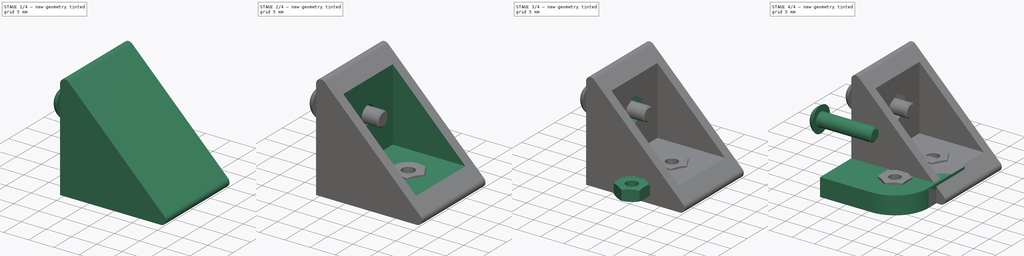
[diagram: build sequence overview — one tinted view per stage of 4, left to right]
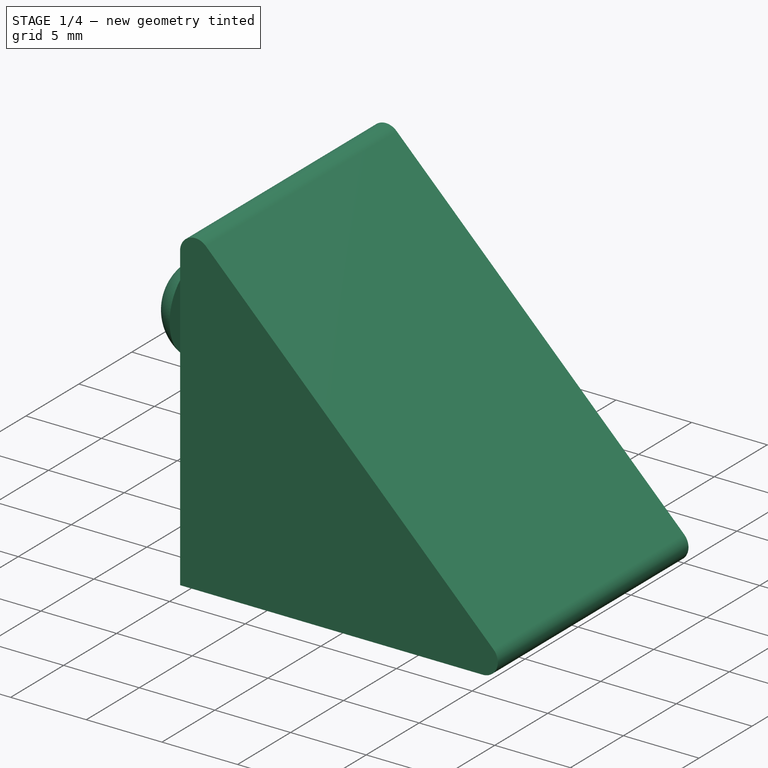
[diagram: stage 1 of 4 — iso view after this stage's code; geometry added in this stage tinted green]
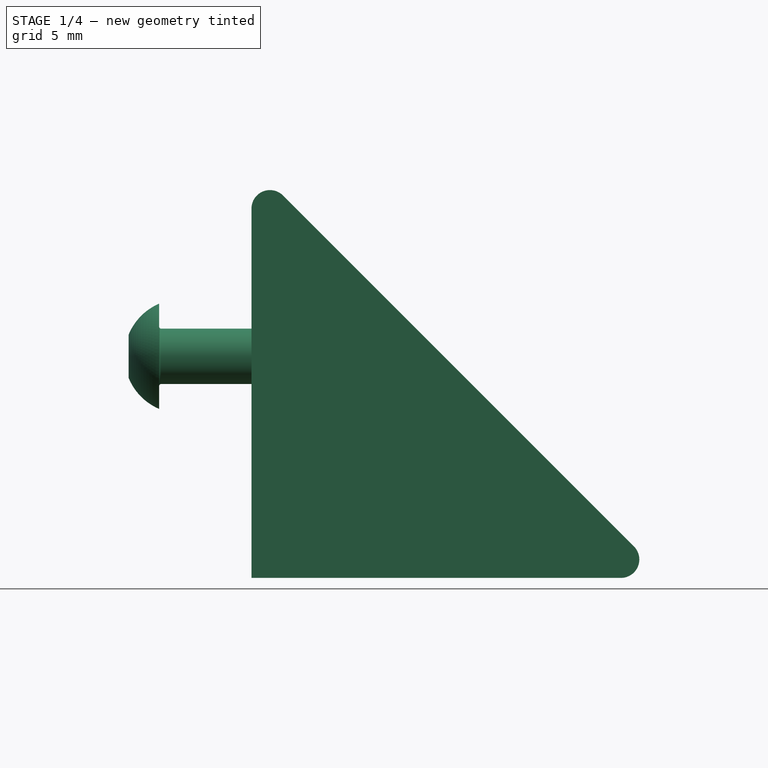
[diagram: stage 1 of 4 — front view after this stage's code; geometry added in this stage tinted green]
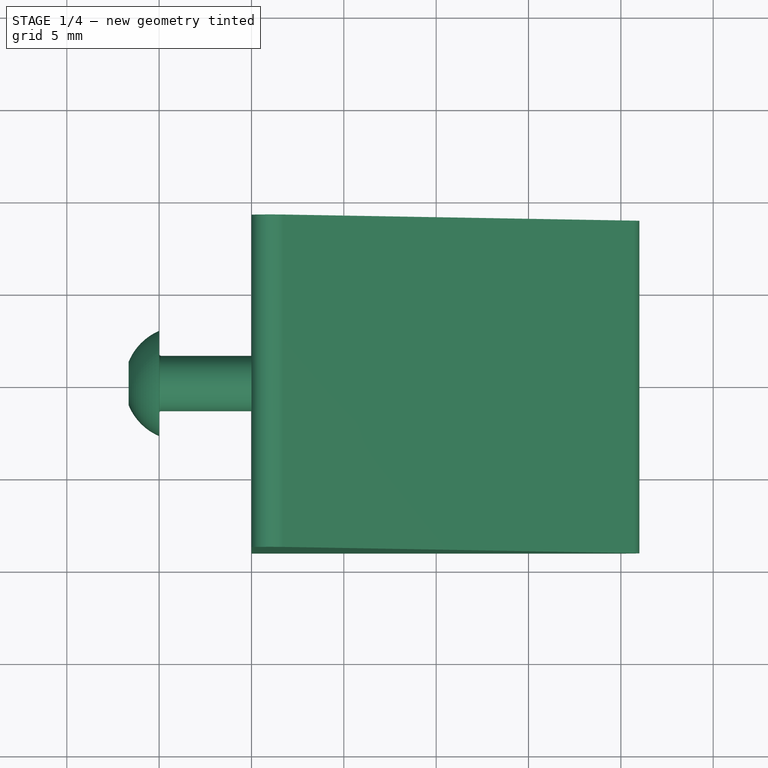
[diagram: stage 1 of 4 — top view after this stage's code; geometry added in this stage tinted green]
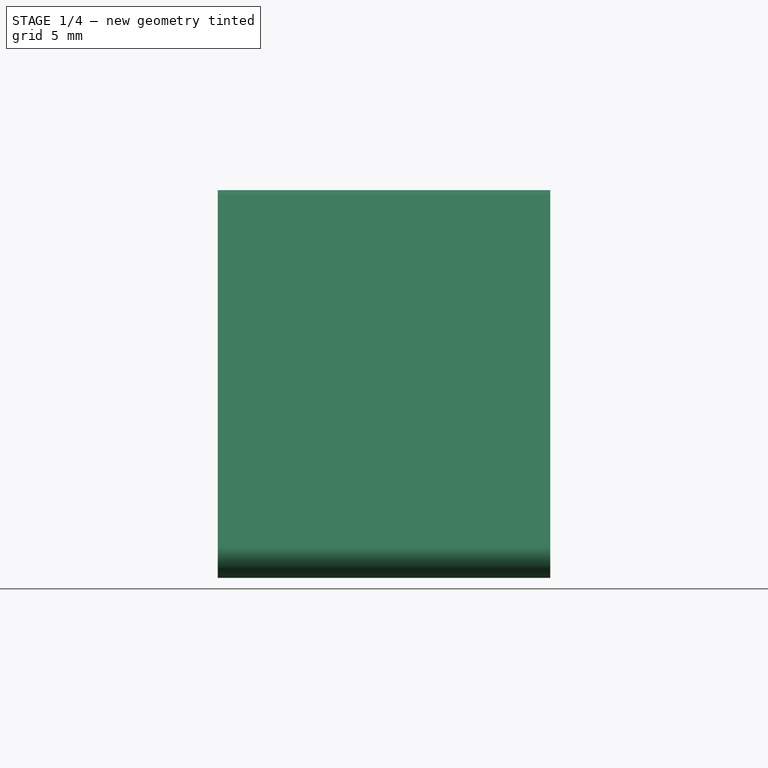
[diagram: stage 1 of 4 — right view after this stage's code; geometry added in this stage tinted green]
FCSTD DOCUMENT  (FreeCAD 0.20R29410 (Git))
Label: Bracket
License: All rights reserved
LicenseURL: http://en.wikipedia.org/wiki/All_rights_reserved
objects: Sketcher::SketchObject×8, App::LinkElement×6, PartDesign::Pocket×6, App::Part×6, App::Link×5, Part::FeaturePython×4, PartDesign::Pad×2, PartDesign::Body×2
note: 30 computed .brp shape members not serialized (recipe doc carries the construction recipe); baked Part::Feature solids carry a one-line shape summary decoded from their .brp

FEATURE [App::LinkElement] Link002_i0
  LinkPlacement = pos=(2,-11.5,11.5) rot=(0,1,0;1.5708rad)
  LinkedObject = -> Nut
  Placement = pos=(2,-11.5,11.5) rot=(0,1,0;1.5708rad)
  _LinkOwner = 3688
FEATURE [App::LinkElement] Link002_i1
  LinkPlacement = pos=(11.5,-2,11.5) rot=(1,0,0;1.5708rad)
  LinkedObject = -> Nut
  Placement = pos=(11.5,-2,11.5) rot=(1,0,0;1.5708rad)
  _LinkOwner = 3688
FEATURE [App::Link] Link002  label="M3-Nut001"
  ElementCount = 2
  ElementList = -> [Link002_i0,Link002_i1]
  LinkedObject = -> Nut
FEATURE [App::Part] Part001  label="bracket"
  Group = -> [Body,Link]
  Origin = -> Origin003
FEATURE [App::Part] Part002  label="screw"
  Group = -> [Screw,Link001,Nut,Link002]
  Origin = -> Origin004
FEATURE [App::Part] Part  label="Corner_bracket"
  Group = -> [Part001,Part002]
  Origin = -> Origin002
FEATURE [Sketcher::SketchObject] Sketch002
  FullyConstrained = true
  MapMode = 5
  Placement = pos=(0,0,0) rot=(1,0,0;1.5708rad)
  Support = -> [XZ_Plane008]
  sketch-geometry (5):
    g0: LineSegment StartX=0 StartY=20 StartZ=0 EndX=0 EndY=0 EndZ=0
    g1: LineSegment StartX=0 StartY=0 StartZ=0 EndX=20 EndY=0 EndZ=0
    g2: ArcOfCircle CenterX=1 CenterY=20 CenterZ=0 NormalX=0 NormalY=0 NormalZ=1 AngleXU=0 Radius=1 StartAngle=0.785398 EndAngle=3.14159
    g3: ArcOfCircle CenterX=20 CenterY=1 CenterZ=0 NormalX=0 NormalY=0 NormalZ=1 AngleXU=0 Radius=1 StartAngle=4.71239 EndAngle=7.06858
    g4: LineSegment StartX=1.70711 StartY=20.7071 StartZ=0 EndX=20.7071 EndY=1.70711 EndZ=0
  constraints (13):
    c: PointOnObject(g0,g-2)
    c: Vertical(g0)
    c: Coincident(g1,g0)
    c: PointOnObject(g1,g-1)
    c: Horizontal(g1)
    c: Tangent(g3,g1) = -1.5708
    c: Tangent(g2,g0) = -1.5708
    c: Tangent(g4,g3) = 1.5708
    c: Tangent(g4,g2) = 1.5708
    c: Angle(g4,g1) = 0.785398
    c: Equal(g3,g2)
    c: Diameter(g3) = 2
    c: DistanceY(g0,g0) = 20
FEATURE [PartDesign::Pad] Pad001
  Direction = (0,-1,2e-16)
  Length = 18
  Length2 = 10
  Midplane = true
  Placement = pos=(0,0,0) rot=(1,0,0;1.5708rad)
  Profile = -> Sketch002
  ReferenceAxis = -> Sketch002 [N_Axis]
  Type = 0
FEATURE [PartDesign::Body] Body001  label="Body002"
  Group = -> [Sketch002,Pad001,Sketch003,Pocket001,Sketch004,Pocket002,Sketch005,Pocket003,Sketch006,Pocket004,Sketch007,Pocket005]
  Origin = -> Origin008
  Tip = -> Pocket005
FEATURE [App::Part] Part004  label="bracket001"
  Group = -> [Body001]
  Origin = -> Origin006
FEATURE [Part::FeaturePython] Nut001  label="M3-Nut004"  # Fasteners workbench fastener (typed FeaturePython)
  Placement = pos=(12,0,2) rot=(0,0,1;0rad)
  diameter = 4
  invert = false
  leftHanded = false
  matchOuter = false
  offset = 0
  thread = false
  type = 10
FEATURE [App::Link] Link003  label="M3-Nut003"
  LinkPlacement = pos=(2,0,12) rot=(0,1,0;1.5708rad)
  LinkedObject = -> Nut001
  Placement = pos=(2,0,12) rot=(0,1,0;1.5708rad)
FEATURE [Part::FeaturePython] Screw001  label="M3x12-Screw001"  # Fasteners workbench fastener (typed FeaturePython)
  Placement = pos=(-5,0,12) rot=(0,1,0;4.71239rad)
  diameter = 1
  invert = false
  leftHanded = false
  length = 3
  lengthCustom = 12
  matchOuter = false
  offset = 0
  thread = false
  type = 48
FEATURE [App::Link] Link004  label="M3x10-Screw002"
  LinkPlacement = pos=(12,-1.14441e-05,-5) rot=(0,1,0;3.14159rad)
  LinkedObject = -> Screw001
  Placement = pos=(12,-1.14441e-05,-5) rot=(0,1,0;3.14159rad)
FEATURE [App::Part] Part005  label="screw001"
  Group = -> [Nut001,Link003,Screw001,Link004]
  Origin = -> Origin007
FEATURE [App::Part] Part003  label="Right_angle_bracket"
  Group = -> [Part004,Part005]
  Origin = -> Origin005
  Placement = pos=(0,-42,0) rot=(0,0,1;0rad)
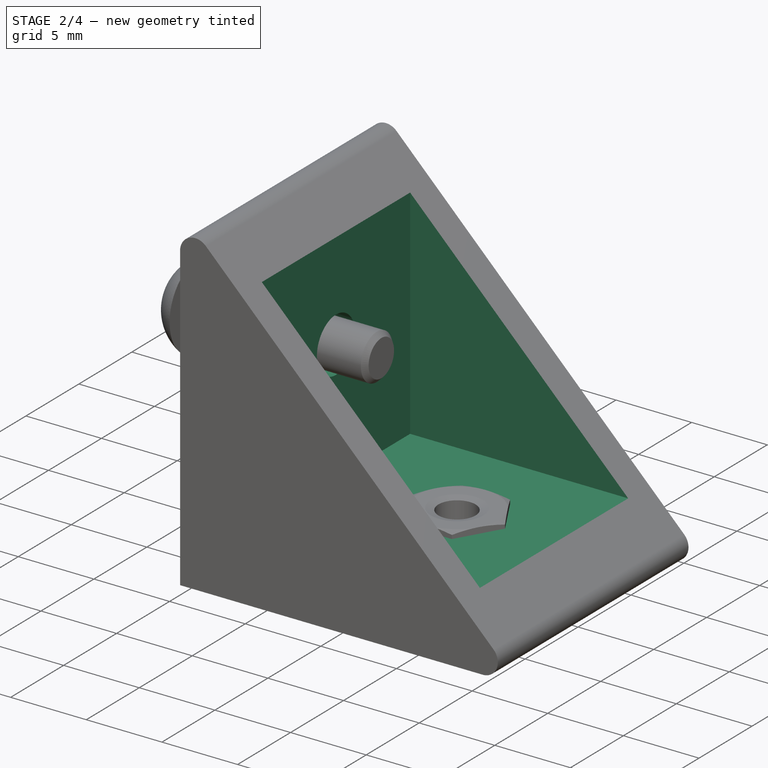
[diagram: stage 2 of 4 — iso view after this stage's code; geometry added in this stage tinted green]
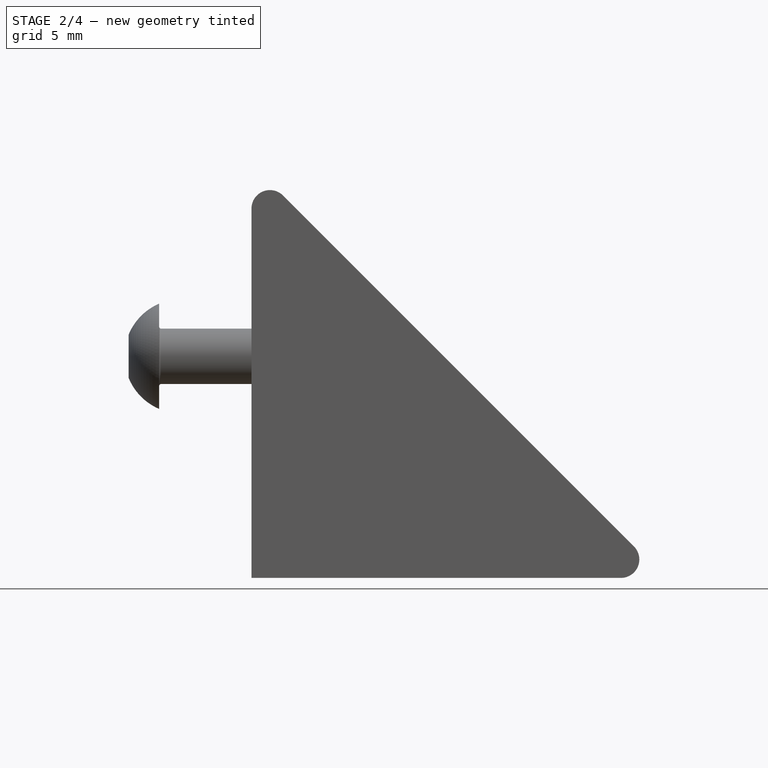
[diagram: stage 2 of 4 — front view after this stage's code; geometry added in this stage tinted green]
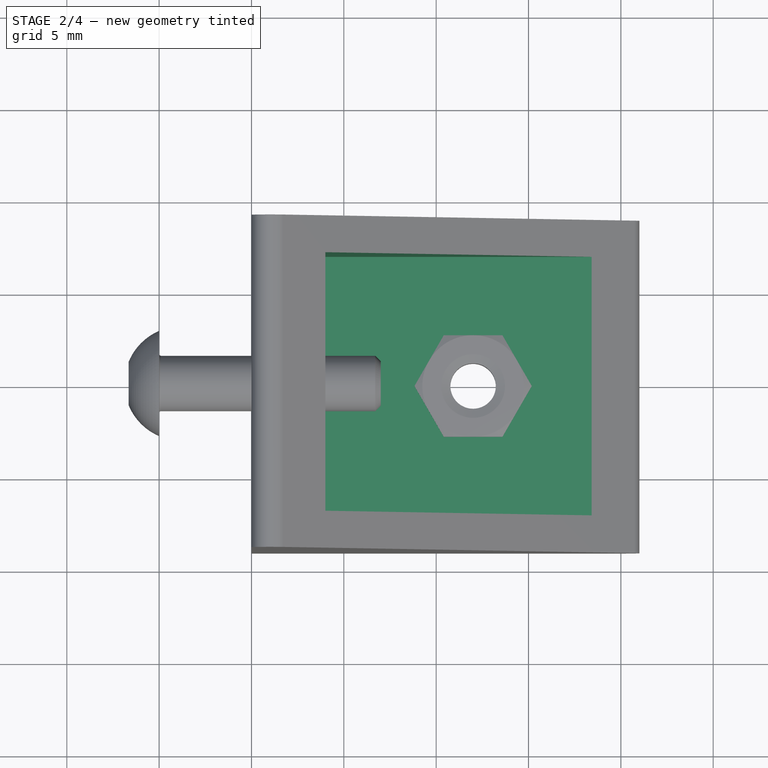
[diagram: stage 2 of 4 — top view after this stage's code; geometry added in this stage tinted green]
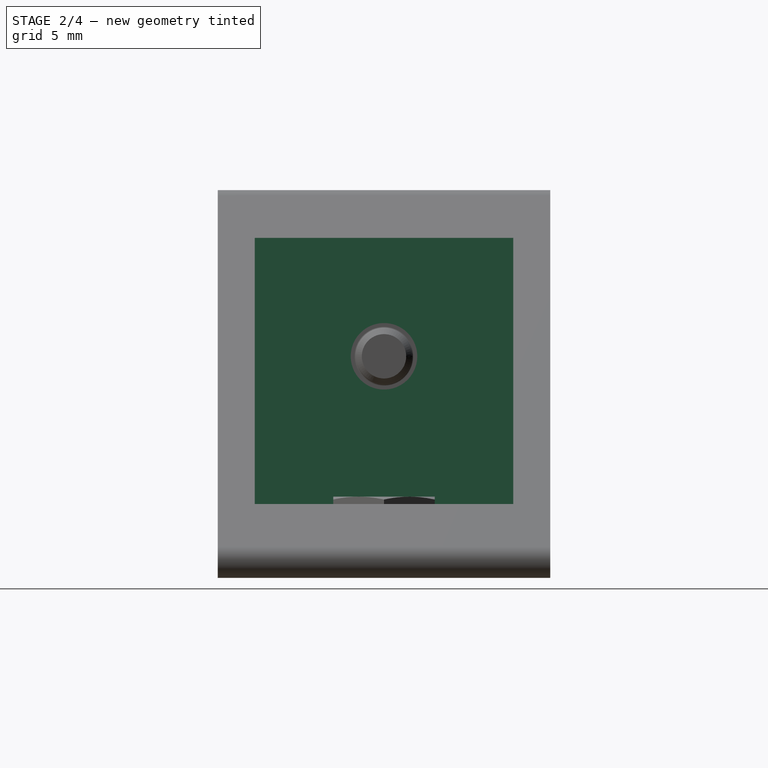
[diagram: stage 2 of 4 — right view after this stage's code; geometry added in this stage tinted green]
FEATURE [Sketcher::SketchObject] Sketch003
  FullyConstrained = true
  MapMode = 5
  Placement = pos=(0,0,0) rot=(1,0,0;1.5708rad)
  Support = -> [XZ_Plane008]
  sketch-geometry (3):
    g0: LineSegment StartX=4 StartY=24 StartZ=0 EndX=4 EndY=4 EndZ=0
    g1: LineSegment StartX=4 StartY=4 StartZ=0 EndX=24 EndY=4 EndZ=0
    g2: LineSegment StartX=24 StartY=4 StartZ=0 EndX=4 EndY=24 EndZ=0
  constraints (9):
    c: Vertical(g0)
    c: Coincident(g1,g0)
    c: Horizontal(g1)
    c: Coincident(g2,g1)
    c: Coincident(g2,g0)
    c: Angle(g2,g1) = 0.785398
    c: DistanceX(g-1,g0) = 4
    c: DistanceY(g-1,g0) = 4
    c: DistanceY(g0,g0) = 20
FEATURE [PartDesign::Pocket] Pocket001
  BaseFeature = -> Pad001
  Direction = (0,1,-2e-16)
  Length = 14
  Length2 = 5
  Midplane = true
  Placement = pos=(0,0,0) rot=(1,0,0;1.5708rad)
  Profile = -> Sketch003
  ReferenceAxis = -> Sketch003 [N_Axis]
  Type = 0
FEATURE [Sketcher::SketchObject] Sketch004
  FullyConstrained = true
  MapMode = 5
  Support = -> [XY_Plane008]
  sketch-geometry (1):
    g0: Circle CenterX=12 CenterY=0 CenterZ=0 NormalX=0 NormalY=0 NormalZ=1 AngleXU=0 Radius=1.8
  constraints (3):
    c: PointOnObject(g0,g-1)
    c: Diameter(g0) = 3.6
    c: DistanceX(g-1,g0) = 12
FEATURE [PartDesign::Pocket] Pocket002
  BaseFeature = -> Pocket001
  Direction = (0,0,-1)
  Length = 5
  Length2 = 5
  Midplane = true
  Placement = pos=(0,0,0) rot=(1,0,0;1.5708rad)
  Profile = -> Sketch004
  ReferenceAxis = -> Sketch004 [N_Axis]
  Type = 1
FEATURE [Sketcher::SketchObject] Sketch005
  FullyConstrained = true
  MapMode = 5
  Placement = pos=(0,0,0) rot=(0.57735,0.57735,0.57735;2.0944rad)
  Support = -> [YZ_Plane008]
  sketch-geometry (1):
    g0: Circle CenterX=0 CenterY=12 CenterZ=0 NormalX=0 NormalY=0 NormalZ=1 AngleXU=0 Radius=1.8
  constraints (3):
    c: PointOnObject(g0,g-2)
    c: Diameter(g0) = 3.6
    c: DistanceY(g-1,g0) = 12
FEATURE [PartDesign::Pocket] Pocket003
  BaseFeature = -> Pocket002
  Direction = (-1,2e-16,-3e-16)
  Length = 5
  Length2 = 5
  Midplane = true
  Placement = pos=(0,0,0) rot=(1,0,0;1.5708rad)
  Profile = -> Sketch005
  ReferenceAxis = -> Sketch005 [N_Axis]
  Type = 1
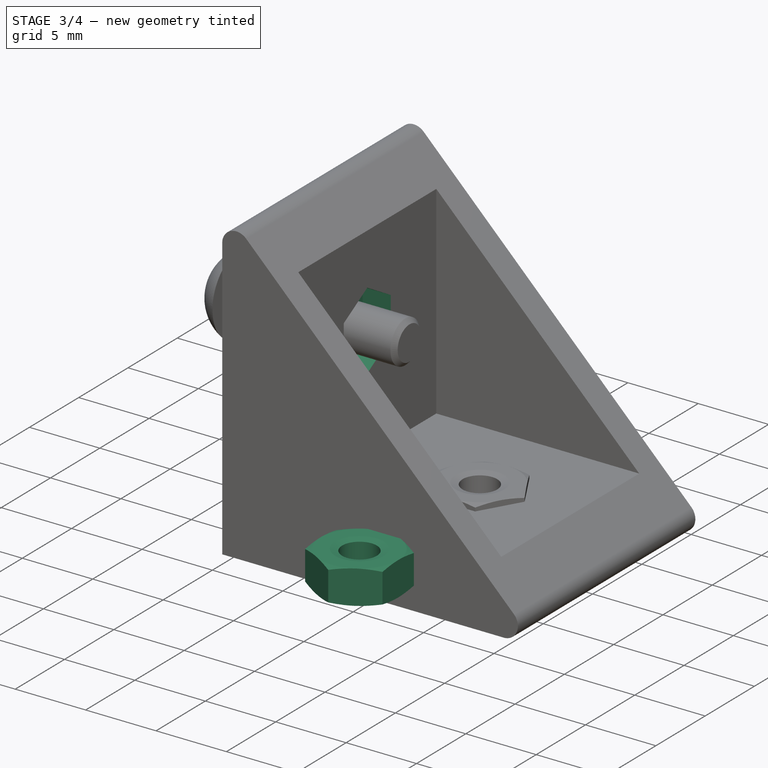
[diagram: stage 3 of 4 — iso view after this stage's code; geometry added in this stage tinted green]
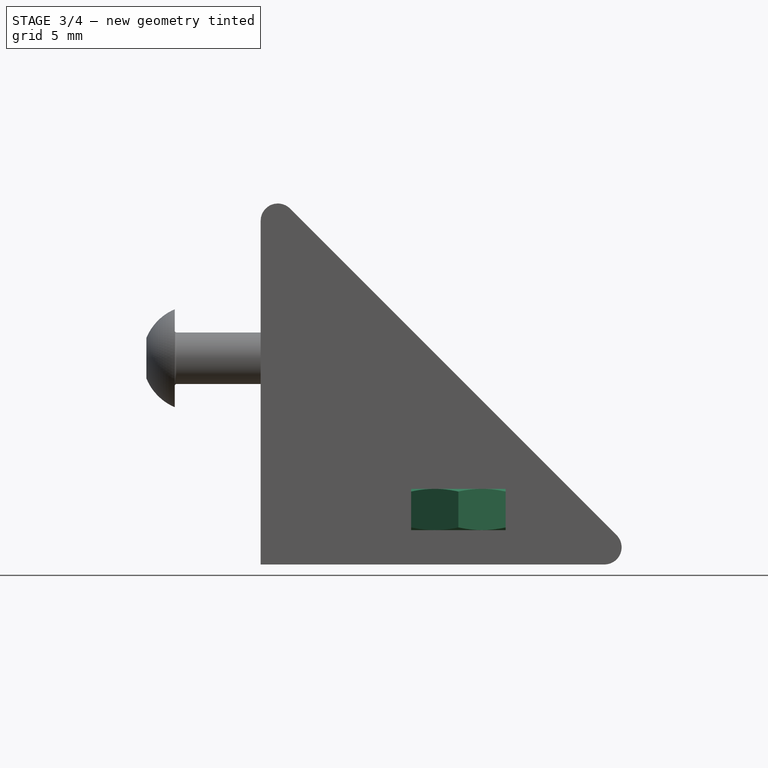
[diagram: stage 3 of 4 — front view after this stage's code; geometry added in this stage tinted green]
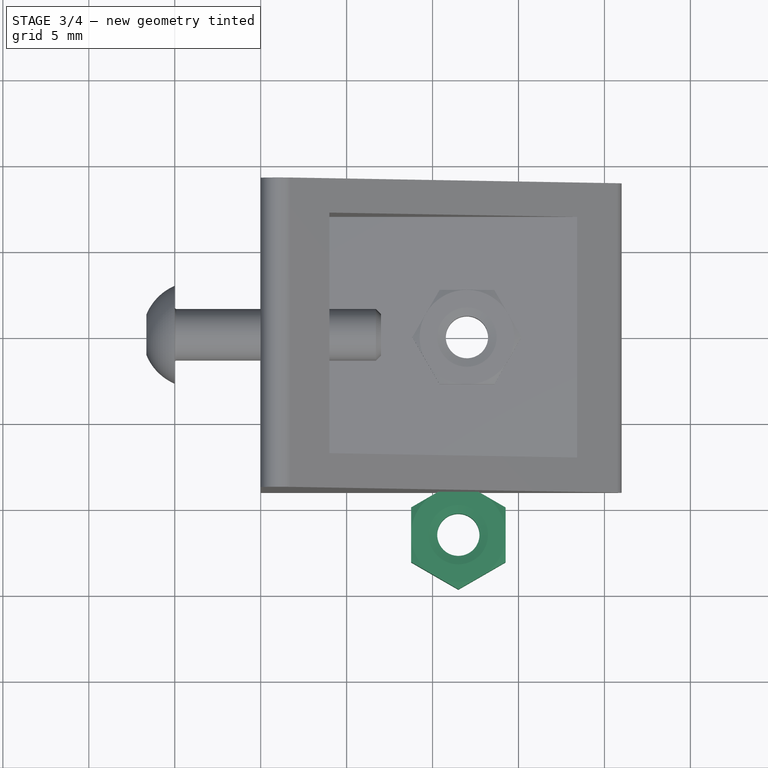
[diagram: stage 3 of 4 — top view after this stage's code; geometry added in this stage tinted green]
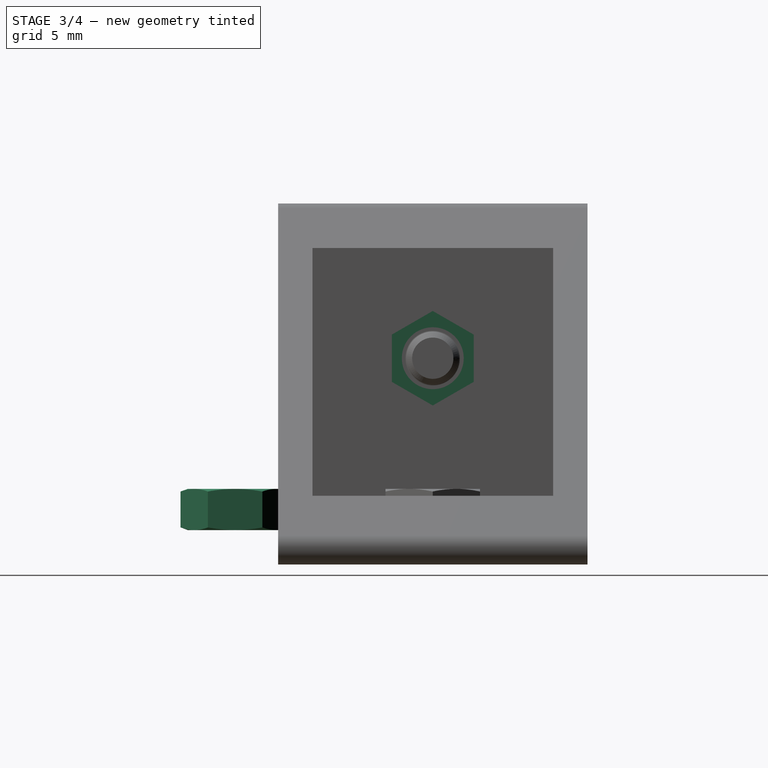
[diagram: stage 3 of 4 — right view after this stage's code; geometry added in this stage tinted green]
FEATURE [PartDesign::Body] Body
  Group = -> [Sketch,Pad,Sketch001,Pocket]
  Origin = -> Origin
  Tip = -> Pocket
FEATURE [Part::FeaturePython] Nut  label="M3-Nut"  # Fasteners workbench fastener (typed FeaturePython)
  Placement = pos=(11.5,-11.5,2) rot=(0,0,1;5.75959rad)
  diameter = 4
  invert = false
  leftHanded = false
  matchOuter = false
  offset = 0
  thread = false
  type = 10
FEATURE [Sketcher::SketchObject] Sketch006
  AttachmentOffset = pos=(0,0,2) rot=(0,0,1;0rad)
  FullyConstrained = true
  MapMode = 5
  Placement = pos=(2,-4e-16,4e-16) rot=(0.57735,0.57735,0.57735;2.0944rad)
  Support = -> [YZ_Plane008]
  sketch-geometry (7):
    g0: LineSegment StartX=0 StartY=14.75 StartZ=0 EndX=-2.38157 EndY=13.375 EndZ=0
    g1: LineSegment StartX=-2.38157 StartY=13.375 StartZ=0 EndX=-2.38157 EndY=10.625 EndZ=0
    g2: LineSegment StartX=-2.38157 StartY=10.625 StartZ=0 EndX=0 EndY=9.25 EndZ=0
    g3: LineSegment StartX=0 StartY=9.25 StartZ=0 EndX=2.38157 EndY=10.625 EndZ=0
    g4: LineSegment StartX=2.38157 StartY=10.625 StartZ=0 EndX=2.38157 EndY=13.375 EndZ=0
    g5: LineSegment StartX=2.38157 StartY=13.375 StartZ=0 EndX=0 EndY=14.75 EndZ=0
    g6: Circle CenterX=0 CenterY=12 CenterZ=0 NormalX=0 NormalY=0 NormalZ=1 AngleXU=0 Radius=2.75
  constraints (17):
    c: Coincident(g0,g1)
    c: Coincident(g1,g2)
    c: Coincident(g2,g3)
    c: Coincident(g3,g4)
    c: Coincident(g4,g5)
    c: Coincident(g5,g0)
    c: Equal(g0, g1-g5) x5
    c: PointOnObject(g0,g6)
    c: PointOnObject(g1,g6)
    c: PointOnObject(g2,g6)
    c: PointOnObject(g3,g6)
    c: PointOnObject(g4,g6)
    c: PointOnObject(g5,g6)
    c: PointOnObject(g6,g-2)
    c: PointOnObject(g0,g-2)
    c: Diameter(g6) = 5.5
    c: DistanceY(g-1,g6) = 12
FEATURE [PartDesign::Pocket] Pocket004
  BaseFeature = -> Pocket003
  Direction = (-1,2e-16,-3e-16)
  Length = 5
  Length2 = 5
  Placement = pos=(0,0,0) rot=(1,0,0;1.5708rad)
  Profile = -> Sketch006
  ReferenceAxis = -> Sketch006 [N_Axis]
  Reversed = true
  Type = 0
FEATURE [Sketcher::SketchObject] Sketch007
  AttachmentOffset = pos=(0,0,2) rot=(0,0,1;0rad)
  FullyConstrained = true
  MapMode = 5
  Placement = pos=(0,0,2) rot=(0,0,1;0rad)
  Support = -> [XY_Plane008]
  sketch-geometry (7):
    g0: LineSegment StartX=14.75 StartY=0 StartZ=0 EndX=13.375 EndY=2.38157 EndZ=0
    g1: LineSegment StartX=13.375 StartY=2.38157 StartZ=0 EndX=10.625 EndY=2.38157 EndZ=0
    g2: LineSegment StartX=10.625 StartY=2.38157 StartZ=0 EndX=9.25 EndY=7.256e-13 EndZ=0
    g3: LineSegment StartX=9.25 StartY=7.256e-13 StartZ=0 EndX=10.625 EndY=-2.38157 EndZ=0
    g4: LineSegment StartX=10.625 StartY=-2.38157 StartZ=0 EndX=13.375 EndY=-2.38157 EndZ=0
    g5: LineSegment StartX=13.375 StartY=-2.38157 StartZ=0 EndX=14.75 EndY=0 EndZ=0
    g6: Circle CenterX=12 CenterY=0 CenterZ=0 NormalX=0 NormalY=0 NormalZ=1 AngleXU=0 Radius=2.75
  constraints (17):
    c: Coincident(g0,g1)
    c: Coincident(g1,g2)
    c: Coincident(g2,g3)
    c: Coincident(g3,g4)
    c: Coincident(g4,g5)
    c: Coincident(g5,g0)
    c: Equal(g0, g1-g5) x5
    c: PointOnObject(g0,g6)
    c: PointOnObject(g1,g6)
    c: PointOnObject(g2,g6)
    c: PointOnObject(g3,g6)
    c: PointOnObject(g4,g6)
    c: PointOnObject(g5,g6)
    c: PointOnObject(g6,g-1)
    c: PointOnObject(g5,g-1)
    c: Diameter(g6) = 5.5
    c: DistanceX(g-1,g6) = 12
FEATURE [PartDesign::Pocket] Pocket005
  BaseFeature = -> Pocket004
  Direction = (0,0,-1)
  Length = 5
  Length2 = 5
  Placement = pos=(0,0,0) rot=(1,0,0;1.5708rad)
  Profile = -> Sketch007
  ReferenceAxis = -> Sketch007 [N_Axis]
  Reversed = true
  Type = 0
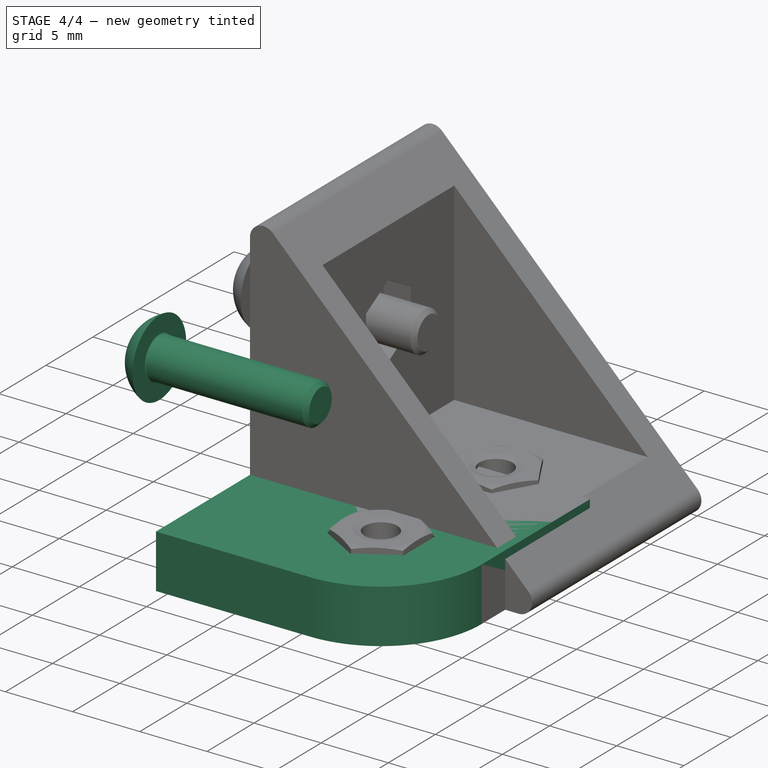
[diagram: stage 4 of 4 — iso view after this stage's code; geometry added in this stage tinted green]
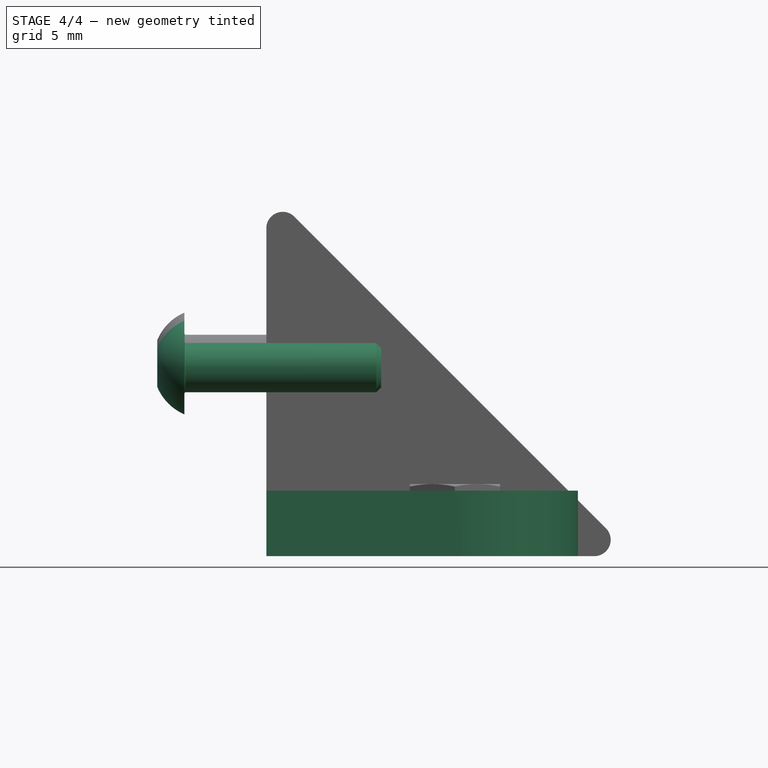
[diagram: stage 4 of 4 — front view after this stage's code; geometry added in this stage tinted green]
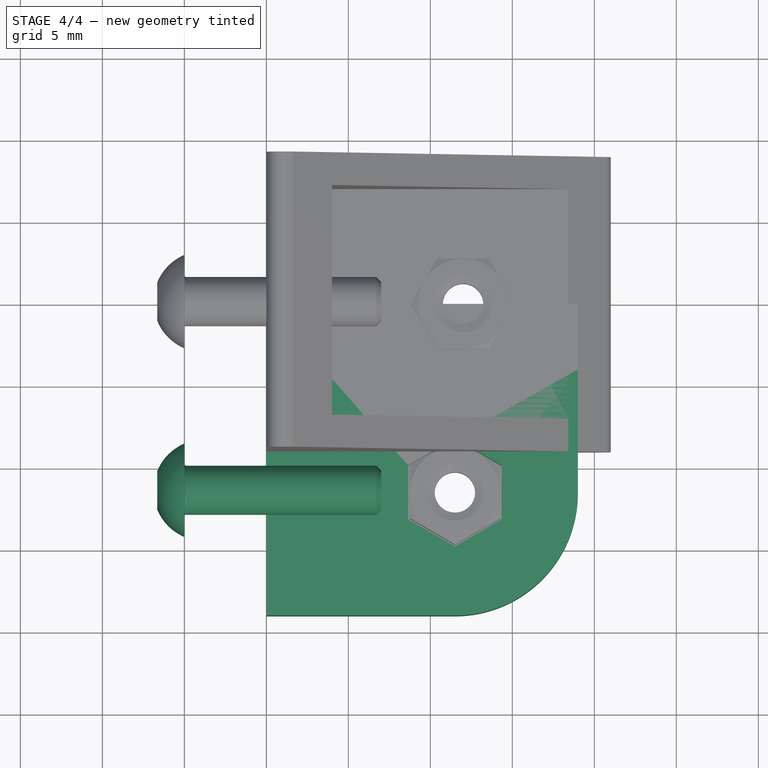
[diagram: stage 4 of 4 — top view after this stage's code; geometry added in this stage tinted green]
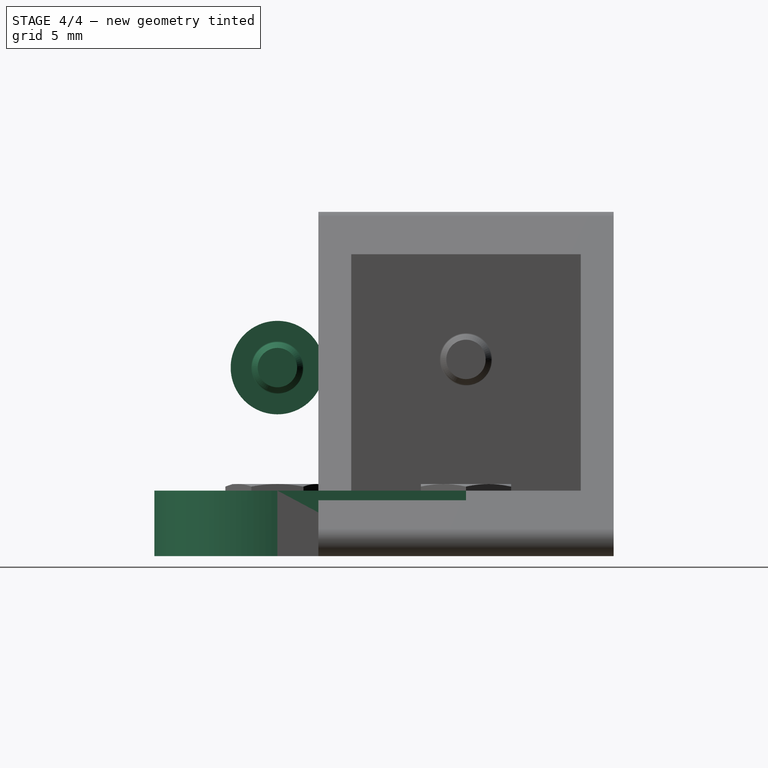
[diagram: stage 4 of 4 — right view after this stage's code; geometry added in this stage tinted green]
FEATURE [Sketcher::SketchObject] Sketch
  FullyConstrained = true
  MapMode = 5
  Support = -> [XY_Plane]
  sketch-geometry (10):
    g0: LineSegment StartX=4 StartY=-4 StartZ=0 EndX=19 EndY=-4 EndZ=0
    g1: LineSegment StartX=4 StartY=-4 StartZ=0 EndX=4 EndY=-19 EndZ=0
    g2: ArcOfCircle CenterX=11.5 CenterY=-11.5 CenterZ=0 NormalX=0 NormalY=0 NormalZ=1 AngleXU=0 Radius=7.5 StartAngle=4.71239 EndAngle=6.28319
    g3: LineSegment StartX=4 StartY=-19 StartZ=0 EndX=11.5 EndY=-19 EndZ=0
    g4: LineSegment StartX=19 StartY=-11.5 StartZ=0 EndX=19 EndY=-4 EndZ=0
    g5: Circle CenterX=11.5 CenterY=-11.5 CenterZ=0 NormalX=0 NormalY=0 NormalZ=1 AngleXU=0 Radius=1.8
    g6: LineSegment StartX=19 StartY=-4 StartZ=0 EndX=19 EndY=0 EndZ=0
    g7: LineSegment StartX=19 StartY=0 StartZ=0 EndX=0 EndY=0 EndZ=0
    g8: LineSegment StartX=0 StartY=0 StartZ=0 EndX=0 EndY=-19 EndZ=0
    g9: LineSegment StartX=0 StartY=-19 StartZ=0 EndX=4 EndY=-19 EndZ=0
  constraints (26):
    c: Coincident(g1,g0)
    c: Equal(g0,g1)
    c: Coincident(g3,g1)
    c: Coincident(g4,g0)
    c: Vertical(g4)
    c: Tangent(g3,g2) = -1.5708
    c: Tangent(g4,g2) = -1.5708
    c: Symmetric(g0,g1,g2)
    c: Coincident(g5,g2)
    c: Diameter(g5) = 3.6
    c: DistanceX(g0,g0) = 15
    c: Vertical(g1)
    c: Horizontal(g0)
    c: Coincident(g6,g0)
    c: PointOnObject(g6,g-1)
    c: Vertical(g6)
    c: Coincident(g7,g6)
    c: PointOnObject(g7,g-1)
    c: Coincident(g8,g7)
    c: PointOnObject(g8,g-2)
    c: Vertical(g8)
    c: Coincident(g9,g8)
    c: Coincident(g9,g1)
    c: Horizontal(g9)
    c: Equal(g9,g6)
    c: DistanceX(g9,g9) = 4  'epaisseur'
FEATURE [PartDesign::Pad] Pad
  Direction = (0,0,1)
  Length = 4
  Length2 = 10
  Profile = -> Sketch
  ReferenceAxis = -> Sketch [N_Axis]
  Type = 0
  expr: Length = <<Sketch>>.Constraints.epaisseur
FEATURE [App::LinkElement] Link_i0
  LinkPlacement = pos=(-4.76837e-07,-5.96047e-07,-4.76837e-07) rot=(0.57735,-0.57735,0.57735;2.0944rad)
  LinkedObject = -> Body
  Placement = pos=(-4.76837e-07,-5.96047e-07,-4.76837e-07) rot=(0.57735,-0.57735,0.57735;2.0944rad)
  _LinkOwner = 3676
FEATURE [App::LinkElement] Link_i1
  LinkPlacement = pos=(4.76837e-07,9.53674e-07,-9.53675e-07) rot=(0.57735,-0.57735,0.57735;4.18879rad)
  LinkedObject = -> Body
  Placement = pos=(4.76837e-07,9.53674e-07,-9.53675e-07) rot=(0.57735,-0.57735,0.57735;4.18879rad)
  _LinkOwner = 3676
FEATURE [App::Link] Link  label="Body001"
  ElementCount = 2
  ElementList = -> [Link_i0,Link_i1]
  LinkedObject = -> Body
FEATURE [Part::FeaturePython] Screw  label="M3x12-Screw"  # Fasteners workbench fastener (typed FeaturePython)
  Placement = pos=(-5,-11.5,11.5) rot=(0,1,0;4.71239rad)
  diameter = 1
  invert = false
  leftHanded = false
  length = 3
  lengthCustom = 12
  matchOuter = false
  offset = 0
  thread = false
  type = 48
FEATURE [App::LinkElement] Link001_i0
  LinkPlacement = pos=(11.5,-11.5,-5) rot=(1,0,0;3.14159rad)
  LinkedObject = -> Screw
  Placement = pos=(11.5,-11.5,-5) rot=(1,0,0;3.14159rad)
  _LinkOwner = 3682
FEATURE [App::LinkElement] Link001_i1
  LinkPlacement = pos=(11.5,5,11.5) rot=(-1,0,0;1.5708rad)
  LinkedObject = -> Screw
  Placement = pos=(11.5,5,11.5) rot=(-1,0,0;1.5708rad)
  _LinkOwner = 3682
FEATURE [App::Link] Link001  label="M3x10-Screw001"
  ElementCount = 2
  ElementList = -> [Link001_i0,Link001_i1]
  LinkedObject = -> Screw
FEATURE [Sketcher::SketchObject] Sketch001
  AttachmentOffset = pos=(0,0,2) rot=(0,0,1;0rad)
  ExternalGeometry = -> [Pad]
  FullyConstrained = true
  MapMode = 5
  Placement = pos=(0,0,2) rot=(0,0,1;0rad)
  Support = -> [XY_Plane]
  sketch-geometry (7):
    g0: LineSegment StartX=8.65 StartY=-9.85455 StartZ=0 EndX=8.65 EndY=-13.1454 EndZ=0
    g1: LineSegment StartX=8.65 StartY=-13.1454 StartZ=0 EndX=11.5 EndY=-14.7909 EndZ=0
    g2: LineSegment StartX=11.5 StartY=-14.7909 StartZ=0 EndX=14.35 EndY=-13.1454 EndZ=0
    g3: LineSegment StartX=14.35 StartY=-13.1454 StartZ=0 EndX=14.35 EndY=-9.85455 EndZ=0
    g4: LineSegment StartX=14.35 StartY=-9.85455 StartZ=0 EndX=11.5 EndY=-8.2091 EndZ=0
    g5: LineSegment StartX=11.5 StartY=-8.2091 StartZ=0 EndX=8.65 EndY=-9.85455 EndZ=0
    g6: Circle CenterX=11.5 CenterY=-11.5 CenterZ=0 NormalX=0 NormalY=0 NormalZ=1 AngleXU=0 Radius=3.2909
  constraints (16):
    c: Coincident(g0,g1)
    c: Coincident(g1,g2)
    c: Coincident(g2,g3)
    c: Coincident(g3,g4)
    c: Coincident(g4,g5)
    c: Coincident(g5,g0)
    c: Equal(g0, g1-g5) x5
    c: PointOnObject(g0,g6)
    c: PointOnObject(g1,g6)
    c: PointOnObject(g2,g6)
    c: PointOnObject(g3,g6)
    c: PointOnObject(g4,g6)
    c: PointOnObject(g5,g6)
    c: Coincident(g6,g-3)
    c: Vertical(g0)
    c: DistanceX(g0,g2) = 5.7
FEATURE [PartDesign::Pocket] Pocket
  BaseFeature = -> Pad
  Direction = (0,0,-1)
  Length = 2
  Length2 = 5
  Profile = -> Sketch001
  ReferenceAxis = -> Sketch001 [N_Axis]
  Reversed = true
  Type = 0
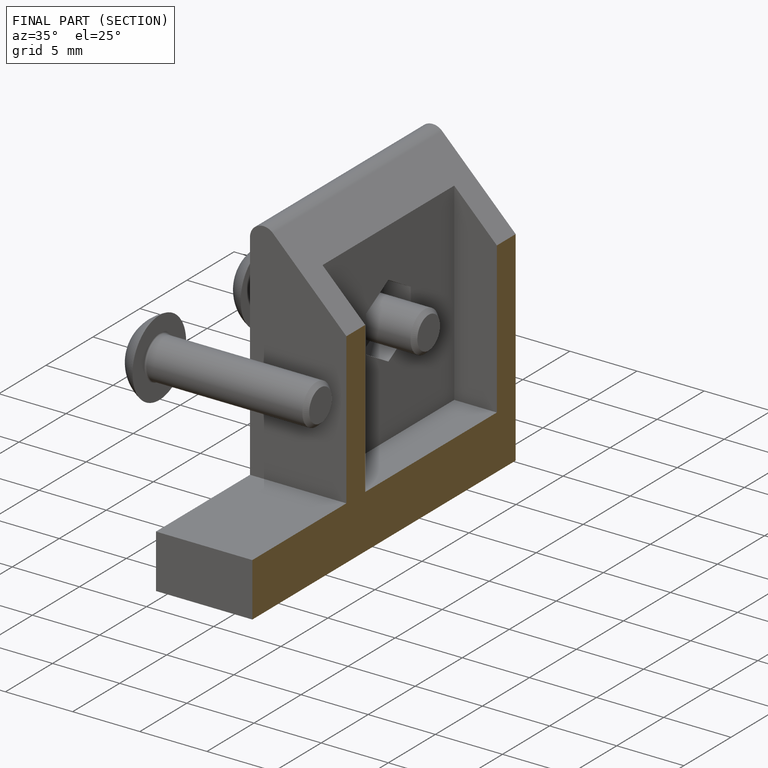
[diagram: finished part — half-section view (interior)]
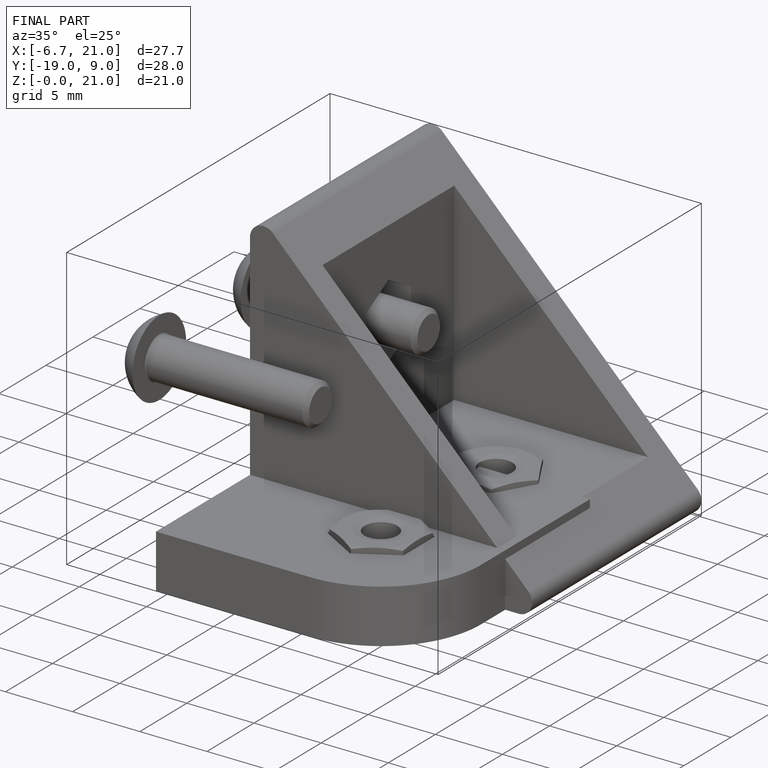
[diagram: finished part — iso view with bounding-box wireframe]
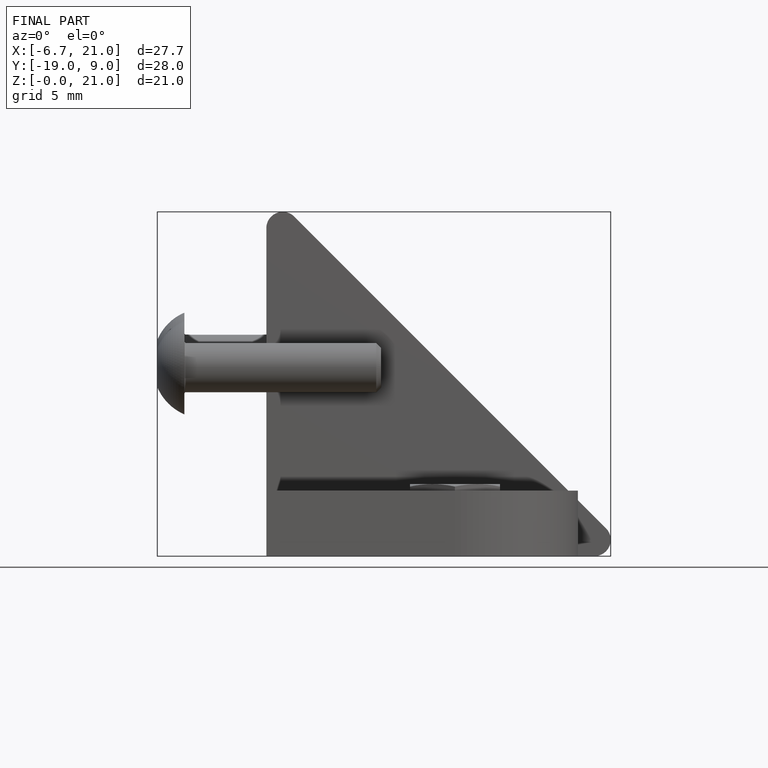
[diagram: finished part — front view with bounding-box wireframe]
